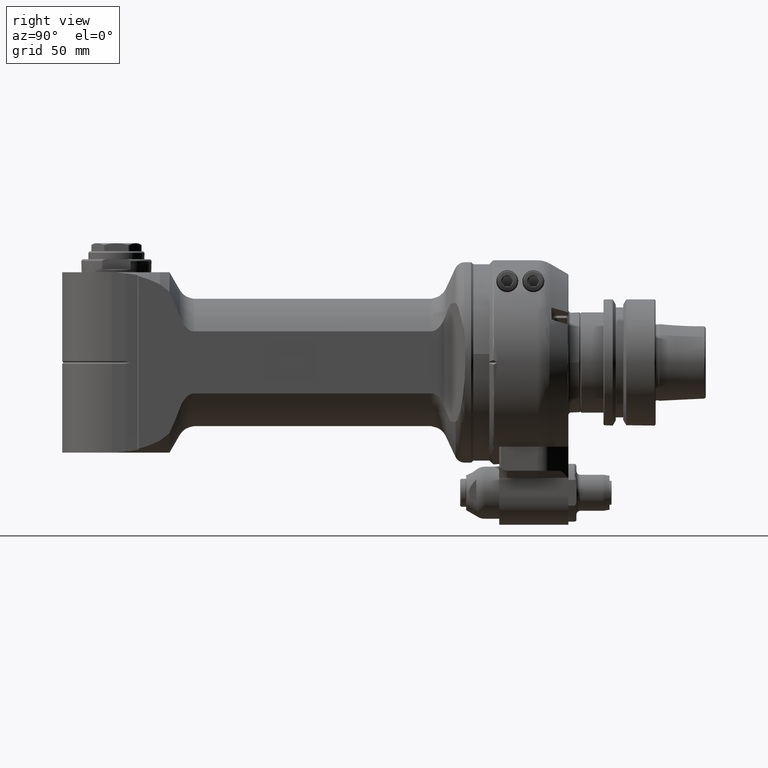
[diagram: clean part render]
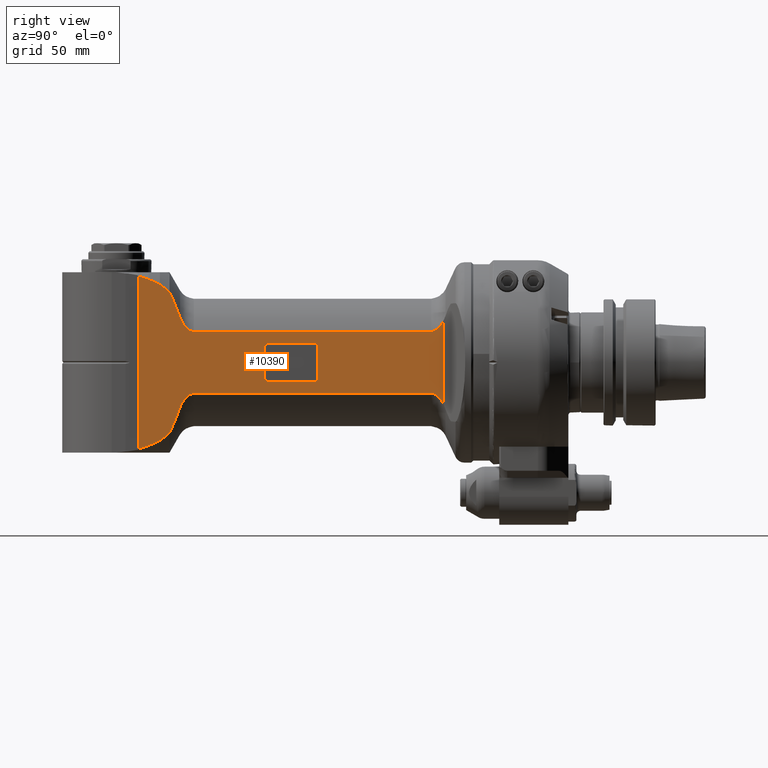
[diagram: same view with one face highlighted and labeled with its STEP entity id]
A machine part, right view. The second image highlights one B-rep face of the part: STEP entity #10390.
In plain terms, the highlighted planar face has unit normal (-1, -0, 0).
Its self-contained STEP definition (entity closure, byte-faithful):
#100=(
BOUNDED_CURVE()
B_SPLINE_CURVE(2,(#20375,#20376,#20377),.UNSPECIFIED.,.F.,.F.)
B_SPLINE_CURVE_WITH_KNOTS((3,3),(2.03905497828461,3.44407312542204),
 .UNSPECIFIED.)
CURVE()
GEOMETRIC_REPRESENTATION_ITEM()
RATIONAL_B_SPLINE_CURVE((1.39135917011265,1.50428489523826,1.58701905543919))
REPRESENTATION_ITEM('')
);
#101=(
BOUNDED_CURVE()
B_SPLINE_CURVE(2,(#20379,#20380,#20381),.UNSPECIFIED.,.F.,.F.)
B_SPLINE_CURVE_WITH_KNOTS((3,3),(0.672694750629335,1.01635820032656),
 .UNSPECIFIED.)
CURVE()
GEOMETRIC_REPRESENTATION_ITEM()
RATIONAL_B_SPLINE_CURVE((1.09614308002075,1.11935469989397,1.14119005597969))
REPRESENTATION_ITEM('')
);
#102=(
BOUNDED_CURVE()
B_SPLINE_CURVE(2,(#20383,#20384,#20385),.UNSPECIFIED.,.F.,.F.)
B_SPLINE_CURVE_WITH_KNOTS((3,3),(0.271465993873518,0.534546793771528),
 .UNSPECIFIED.)
CURVE()
GEOMETRIC_REPRESENTATION_ITEM()
RATIONAL_B_SPLINE_CURVE((1.02892391246967,1.04269703277794,1.05600085717814))
REPRESENTATION_ITEM('')
);
#103=(
BOUNDED_CURVE()
B_SPLINE_CURVE(2,(#20387,#20388,#20389),.UNSPECIFIED.,.F.,.F.)
B_SPLINE_CURVE_WITH_KNOTS((3,3),(0.055537346833267,0.267471575188214),
 .UNSPECIFIED.)
CURVE()
GEOMETRIC_REPRESENTATION_ITEM()
RATIONAL_B_SPLINE_CURVE((1.00475750015511,1.01380938808157,1.02266603537252))
REPRESENTATION_ITEM('')
);
#104=(
BOUNDED_CURVE()
B_SPLINE_CURVE(2,(#20393,#20394,#20395),.UNSPECIFIED.,.F.,.F.)
B_SPLINE_CURVE_WITH_KNOTS((3,3),(19.4953049597711,19.7072392303483),
 .UNSPECIFIED.)
CURVE()
GEOMETRIC_REPRESENTATION_ITEM()
RATIONAL_B_SPLINE_CURVE((1.02266613989085,1.01380949169473,1.00475760284315))
REPRESENTATION_ITEM('')
);
#105=(
BOUNDED_CURVE()
B_SPLINE_CURVE(2,(#20397,#20398,#20399),.UNSPECIFIED.,.F.,.F.)
B_SPLINE_CURVE_WITH_KNOTS((3,3),(15.4491780936748,15.7122429200567),
 .UNSPECIFIED.)
CURVE()
GEOMETRIC_REPRESENTATION_ITEM()
RATIONAL_B_SPLINE_CURVE((1.0559652874169,1.04266191113553,1.02888925475358))
REPRESENTATION_ITEM('')
);
#106=(
BOUNDED_CURVE()
B_SPLINE_CURVE(2,(#20401,#20402,#20403),.UNSPECIFIED.,.F.,.F.)
B_SPLINE_CURVE_WITH_KNOTS((3,3),(11.9199200040541,12.263555348694),
 .UNSPECIFIED.)
CURVE()
GEOMETRIC_REPRESENTATION_ITEM()
RATIONAL_B_SPLINE_CURVE((1.14112647971063,1.11929234008351,1.09608201334124))
REPRESENTATION_ITEM('')
);
#107=(
BOUNDED_CURVE()
B_SPLINE_CURVE(2,(#20405,#20406,#20407),.UNSPECIFIED.,.F.,.F.)
B_SPLINE_CURVE_WITH_KNOTS((3,3),(11.1423435471514,12.5471695145456),
 .UNSPECIFIED.)
CURVE()
GEOMETRIC_REPRESENTATION_ITEM()
RATIONAL_B_SPLINE_CURVE((1.58681804929736,1.50409436790844,1.39118294555019))
REPRESENTATION_ITEM('')
);
#255=B_SPLINE_CURVE_WITH_KNOTS('',3,(#20345,#20346,#20347,#20348,#20349,
#20350,#20351,#20352,#20353,#20354,#20355,#20356),.UNSPECIFIED.,.F.,.F.,
(4,2,2,2,2,4),(-2.93597407218818,-2.82337724519284,-2.69378102431655,-2.51186335157645,
-2.32994567883634,-2.12339512890314),.UNSPECIFIED.);
#256=B_SPLINE_CURVE_WITH_KNOTS('',3,(#20360,#20361,#20362,#20363,#20364,
#20365,#20366,#20367,#20368,#20369,#20370,#20371,#20372,#20373),
 .UNSPECIFIED.,.F.,.F.,(4,2,2,2,2,2,4),(-3.92307824233944,-3.77852981809237,
-3.54200246554002,-3.36008479279991,-3.17816712005981,-3.04857089918351,
-2.93597407218818),.UNSPECIFIED.);
#257=B_SPLINE_CURVE_WITH_KNOTS('',3,(#20409,#20410,#20411,#20412,#20413,
#20414,#20415,#20416,#20417,#20418,#20419,#20420,#20421,#20422),
 .UNSPECIFIED.,.F.,.F.,(4,2,2,2,2,2,4),(-2.93597407218818,-2.82337724519285,
-2.69378102431655,-2.51186335157645,-2.32994567883634,-2.09341832628399,
-1.94886990203693),.UNSPECIFIED.);
#258=B_SPLINE_CURVE_WITH_KNOTS('',3,(#20425,#20426,#20427,#20428,#20429,
#20430,#20431,#20432,#20433,#20434,#20435,#20436),.UNSPECIFIED.,.F.,.F.,
(4,2,2,2,2,4),(-3.74855301568806,-3.54200246554002,-3.36008479279991,-3.17816712005981,
-3.04857089918352,-2.93597407218818),.UNSPECIFIED.);
#898=LINE('',#20320,#1541);
#904=LINE('',#20343,#1547);
#905=LINE('',#20358,#1548);
#906=LINE('',#20391,#1549);
#907=LINE('',#20424,#1550);
#908=LINE('',#20438,#1551);
#909=LINE('',#20442,#1552);
#910=LINE('',#20446,#1553);
#1541=VECTOR('',#14250,15.5);
#1547=VECTOR('',#14272,41.77019528795);
#1548=VECTOR('',#14273,118.3910979735);
#1549=VECTOR('',#14274,10.);
#1550=VECTOR('',#14275,118.3910979735);
#1551=VECTOR('',#14276,22.5);
#1552=VECTOR('',#14279,15.5);
#1553=VECTOR('',#14282,22.5);
#1925=FACE_BOUND('',#3299,.T.);
#2151=PLANE('',#11555);
#2637=FACE_OUTER_BOUND('',#3298,.T.);
#3298=EDGE_LOOP('',(#9029,#9030,#9031,#9032,#9033,#9034,#9035,#9036,#9037,
#9038,#9039,#9040,#9041,#9042,#9043,#9044));
#3299=EDGE_LOOP('',(#9045,#9046,#9047,#9048,#9049,#9050,#9051,#9052));
#3997=CIRCLE('',#11554,2.);
#3998=CIRCLE('',#11556,2.);
#3999=CIRCLE('',#11557,2.);
#4000=CIRCLE('',#11558,2.);
#4925=VERTEX_POINT('',#20317);
#4926=VERTEX_POINT('',#20319);
#4933=VERTEX_POINT('',#20337);
#4934=VERTEX_POINT('',#20341);
#4935=VERTEX_POINT('',#20342);
#4936=VERTEX_POINT('',#20344);
#4937=VERTEX_POINT('',#20357);
#4938=VERTEX_POINT('',#20359);
#4939=VERTEX_POINT('',#20374);
#4940=VERTEX_POINT('',#20378);
#4941=VERTEX_POINT('',#20382);
#4942=VERTEX_POINT('',#20386);
#4943=VERTEX_POINT('',#20390);
#4944=VERTEX_POINT('',#20392);
#4945=VERTEX_POINT('',#20396);
#4946=VERTEX_POINT('',#20400);
#4947=VERTEX_POINT('',#20404);
#4948=VERTEX_POINT('',#20408);
#4949=VERTEX_POINT('',#20423);
#4950=VERTEX_POINT('',#20437);
#4951=VERTEX_POINT('',#20439);
#4952=VERTEX_POINT('',#20441);
#4953=VERTEX_POINT('',#20443);
#4954=VERTEX_POINT('',#20445);
#6339=EDGE_CURVE('',#4926,#4925,#898,.T.);
#6349=EDGE_CURVE('',#4925,#4933,#3997,.T.);
#6350=EDGE_CURVE('',#4934,#4935,#904,.T.);
#6351=EDGE_CURVE('',#4936,#4934,#255,.T.);
#6352=EDGE_CURVE('',#4937,#4936,#905,.T.);
#6353=EDGE_CURVE('',#4938,#4937,#256,.T.);
#6354=EDGE_CURVE('',#4939,#4938,#100,.T.);
#6355=EDGE_CURVE('',#4940,#4939,#101,.T.);
#6356=EDGE_CURVE('',#4941,#4940,#102,.T.);
#6357=EDGE_CURVE('',#4942,#4941,#103,.T.);
#6358=EDGE_CURVE('',#4943,#4942,#906,.T.);
#6359=EDGE_CURVE('',#4944,#4943,#104,.T.);
#6360=EDGE_CURVE('',#4945,#4944,#105,.T.);
#6361=EDGE_CURVE('',#4946,#4945,#106,.T.);
#6362=EDGE_CURVE('',#4947,#4946,#107,.T.);
#6363=EDGE_CURVE('',#4948,#4947,#257,.T.);
#6364=EDGE_CURVE('',#4949,#4948,#907,.T.);
#6365=EDGE_CURVE('',#4935,#4949,#258,.T.);
#6366=EDGE_CURVE('',#4933,#4950,#908,.T.);
#6367=EDGE_CURVE('',#4950,#4951,#3998,.T.);
#6368=EDGE_CURVE('',#4951,#4952,#909,.T.);
#6369=EDGE_CURVE('',#4952,#4953,#3999,.T.);
#6370=EDGE_CURVE('',#4953,#4954,#910,.T.);
#6371=EDGE_CURVE('',#4954,#4926,#4000,.T.);
#9029=ORIENTED_EDGE('',*,*,#6350,.F.);
#9030=ORIENTED_EDGE('',*,*,#6351,.F.);
#9031=ORIENTED_EDGE('',*,*,#6352,.F.);
#9032=ORIENTED_EDGE('',*,*,#6353,.F.);
#9033=ORIENTED_EDGE('',*,*,#6354,.F.);
#9034=ORIENTED_EDGE('',*,*,#6355,.F.);
#9035=ORIENTED_EDGE('',*,*,#6356,.F.);
#9036=ORIENTED_EDGE('',*,*,#6357,.F.);
#9037=ORIENTED_EDGE('',*,*,#6358,.F.);
#9038=ORIENTED_EDGE('',*,*,#6359,.F.);
#9039=ORIENTED_EDGE('',*,*,#6360,.F.);
#9040=ORIENTED_EDGE('',*,*,#6361,.F.);
#9041=ORIENTED_EDGE('',*,*,#6362,.F.);
#9042=ORIENTED_EDGE('',*,*,#6363,.F.);
#9043=ORIENTED_EDGE('',*,*,#6364,.F.);
#9044=ORIENTED_EDGE('',*,*,#6365,.F.);
#9045=ORIENTED_EDGE('',*,*,#6339,.T.);
#9046=ORIENTED_EDGE('',*,*,#6349,.T.);
#9047=ORIENTED_EDGE('',*,*,#6366,.T.);
#9048=ORIENTED_EDGE('',*,*,#6367,.T.);
#9049=ORIENTED_EDGE('',*,*,#6368,.T.);
#9050=ORIENTED_EDGE('',*,*,#6369,.T.);
#9051=ORIENTED_EDGE('',*,*,#6370,.T.);
#9052=ORIENTED_EDGE('',*,*,#6371,.T.);
#10390=ADVANCED_FACE('',(#2637,#1925),#2151,.F.);
#11554=AXIS2_PLACEMENT_3D('',#20339,#14268,#14269);
#11555=AXIS2_PLACEMENT_3D('',#20340,#14270,#14271);
#11556=AXIS2_PLACEMENT_3D('',#20440,#14277,#14278);
#11557=AXIS2_PLACEMENT_3D('',#20444,#14280,#14281);
#11558=AXIS2_PLACEMENT_3D('',#20447,#14283,#14284);
#14250=DIRECTION('',(0.,1.,0.));
#14268=DIRECTION('center_axis',(0.,0.,-1.));
#14269=DIRECTION('ref_axis',(-1.,0.,0.));
#14270=DIRECTION('center_axis',(0.,0.,-1.));
#14271=DIRECTION('ref_axis',(-1.,0.,0.));
#14272=DIRECTION('',(-2.605461445507E-11,1.,6.049025988375E-13));
#14273=DIRECTION('',(-1.,0.,0.));
#14274=DIRECTION('',(0.,-1.,0.));
#14275=DIRECTION('',(1.,0.,0.));
#14276=DIRECTION('',(1.,0.,0.));
#14277=DIRECTION('center_axis',(0.,0.,-1.));
#14278=DIRECTION('ref_axis',(0.,1.,0.));
#14279=DIRECTION('',(0.,-1.,0.));
#14280=DIRECTION('center_axis',(0.,0.,-1.));
#14281=DIRECTION('ref_axis',(1.,0.,0.));
#14282=DIRECTION('',(-1.,0.,0.));
#14283=DIRECTION('center_axis',(0.,0.,-1.));
#14284=DIRECTION('ref_axis',(4.973799150321E-14,-1.,0.));
#20317=CARTESIAN_POINT('',(89.5,7.75,28.));
#20319=CARTESIAN_POINT('',(89.5,-7.75,28.));
#20320=CARTESIAN_POINT('',(89.5,-7.75,28.));
#20337=CARTESIAN_POINT('',(91.5,9.75,28.));
#20339=CARTESIAN_POINT('Origin',(91.5,7.75,28.));
#20340=CARTESIAN_POINT('Origin',(65.03992163408,-45.,28.));
#20341=CARTESIAN_POINT('',(26.80083020114,-20.88509764293,27.99999999999));
#20342=CARTESIAN_POINT('',(26.80083020005,20.88509764501,28.00000000002));
#20343=CARTESIAN_POINT('',(26.80083020114,-20.88509764293,27.99999999999));
#20344=CARTESIAN_POINT('',(32.99009987301,-15.49193338483,28.));
#20345=CARTESIAN_POINT('Ctrl Pts',(32.99009987301,-15.4919333848297,28.));
#20346=CARTESIAN_POINT('Ctrl Pts',(32.6147771163589,-15.4919333848297,28.));
#20347=CARTESIAN_POINT('Ctrl Pts',(32.1698889724911,-15.5620993782773,28.));
#20348=CARTESIAN_POINT('Ctrl Pts',(31.3977248933945,-15.7977099228234,28.));
#20349=CARTESIAN_POINT('Ctrl Pts',(30.9310586317008,-16.0234209939818,28.));
#20350=CARTESIAN_POINT('Ctrl Pts',(30.053798895377,-16.5789816504194,28.));
#20351=CARTESIAN_POINT('Ctrl Pts',(29.550628761613,-17.0081024201193,28.));
#20352=CARTESIAN_POINT('Ctrl Pts',(28.6408811523053,-17.9652022129463,28.));
#20353=CARTESIAN_POINT('Ctrl Pts',(28.233192022949,-18.4921239661789,28.));
#20354=CARTESIAN_POINT('Ctrl Pts',(27.5057921800016,-19.5634036380883,28.));
#20355=CARTESIAN_POINT('Ctrl Pts',(27.1316615896585,-20.2094567222488,28.));
#20356=CARTESIAN_POINT('Ctrl Pts',(26.8008302011102,-20.8850976429154,28.));
#20357=CARTESIAN_POINT('',(151.3811978465,-15.49193338483,28.));
#20358=CARTESIAN_POINT('',(151.3811978465,-15.49193338483,28.));
#20359=CARTESIAN_POINT('',(158.3094010768,-22.62741699797,28.));
#20360=CARTESIAN_POINT('Ctrl Pts',(158.309401076779,-22.6274169979778,28.));
#20361=CARTESIAN_POINT('Ctrl Pts',(158.135199044939,-22.1473726465425,28.));
#20362=CARTESIAN_POINT('Ctrl Pts',(157.934574124956,-21.6588360308148,28.));
#20363=CARTESIAN_POINT('Ctrl Pts',(157.347305959135,-20.3989143849032,28.));
#20364=CARTESIAN_POINT('Ctrl Pts',(156.921636569653,-19.6460707325903,28.));
#20365=CARTESIAN_POINT('Ctrl Pts',(156.138105696561,-18.4921239661789,28.));
#20366=CARTESIAN_POINT('Ctrl Pts',(155.730416567205,-17.9652022129463,28.));
#20367=CARTESIAN_POINT('Ctrl Pts',(154.820668957897,-17.0081024201193,28.));
#20368=CARTESIAN_POINT('Ctrl Pts',(154.317498824133,-16.5789816504194,28.));
#20369=CARTESIAN_POINT('Ctrl Pts',(153.440239087809,-16.0234209939818,28.));
#20370=CARTESIAN_POINT('Ctrl Pts',(152.973572826115,-15.7977099228234,28.));
#20371=CARTESIAN_POINT('Ctrl Pts',(152.201408747019,-15.5620993782773,28.));
#20372=CARTESIAN_POINT('Ctrl Pts',(151.756520603151,-15.4919333848297,28.));
#20373=CARTESIAN_POINT('Ctrl Pts',(151.3811978465,-15.4919333848297,28.));
#20374=CARTESIAN_POINT('',(163.505553565893,-35.2278300211891,27.9999999663342));
#20375=CARTESIAN_POINT('Ctrl Pts',(163.505553553357,-35.2278300268799,28.));
#20376=CARTESIAN_POINT('Ctrl Pts',(160.341636957151,-28.2276005599298,28.));
#20377=CARTESIAN_POINT('Ctrl Pts',(158.309401076753,-22.627416997987,28.));
#20378=CARTESIAN_POINT('',(168.306557192998,-38.9871774622783,27.9999999732539));
#20379=CARTESIAN_POINT('Ctrl Pts',(168.306557193698,-38.9871774616585,28.));
#20380=CARTESIAN_POINT('Ctrl Pts',(165.784458419852,-37.0468690861524,28.));
#20381=CARTESIAN_POINT('Ctrl Pts',(163.505553595417,-35.2278299842281,28.));
#20382=CARTESIAN_POINT('',(173.801511974997,-41.4246303787763,27.9999999918315));
#20383=CARTESIAN_POINT('Ctrl Pts',(173.801511976008,-41.4246303766251,28.));
#20384=CARTESIAN_POINT('Ctrl Pts',(170.970752707287,-40.1810319362775,28.));
#20385=CARTESIAN_POINT('Ctrl Pts',(168.3065572063,-38.987177432899,28.));
#20386=CARTESIAN_POINT('',(178.99000135961,-43.0924361004242,27.9999994453962));
#20387=CARTESIAN_POINT('Ctrl Pts',(178.990001676871,-43.0924351075719,28.));
#20388=CARTESIAN_POINT('Ctrl Pts',(176.344563688575,-42.2470983647563,28.));
#20389=CARTESIAN_POINT('Ctrl Pts',(173.80151197749,-41.4246303712228,28.));
#20390=CARTESIAN_POINT('',(178.99000135961,43.0924361004242,27.9999994453962));
#20391=CARTESIAN_POINT('',(178.99,-22.5,28.));
#20392=CARTESIAN_POINT('',(173.801511974996,41.424630378776,27.9999999918316));
#20393=CARTESIAN_POINT('Ctrl Pts',(173.801511977489,41.4246303712225,28.));
#20394=CARTESIAN_POINT('Ctrl Pts',(176.344563688575,42.2470983647561,28.));
#20395=CARTESIAN_POINT('Ctrl Pts',(178.990001676871,43.0924351075719,28.));
#20396=CARTESIAN_POINT('',(168.306557192998,38.9871774622785,27.9999999732538));
#20397=CARTESIAN_POINT('Ctrl Pts',(168.3065572063,38.9871774328991,28.));
#20398=CARTESIAN_POINT('Ctrl Pts',(170.970752707287,40.1810319362774,28.));
#20399=CARTESIAN_POINT('Ctrl Pts',(173.801511976008,41.4246303766249,28.));
#20400=CARTESIAN_POINT('',(163.505553565892,35.2278300211879,27.9999999663346));
#20401=CARTESIAN_POINT('Ctrl Pts',(163.505553595416,35.2278299842274,28.));
#20402=CARTESIAN_POINT('Ctrl Pts',(165.784458419852,37.0468690861521,28.));
#20403=CARTESIAN_POINT('Ctrl Pts',(168.306557193698,38.9871774616587,28.));
#20404=CARTESIAN_POINT('',(158.3094010768,22.62741699797,28.));
#20405=CARTESIAN_POINT('Ctrl Pts',(158.309401076753,22.6274169979872,28.));
#20406=CARTESIAN_POINT('Ctrl Pts',(160.341636957151,28.2276005599294,28.));
#20407=CARTESIAN_POINT('Ctrl Pts',(163.505553553356,35.2278300268786,28.));
#20408=CARTESIAN_POINT('',(151.3811978465,15.49193338483,28.));
#20409=CARTESIAN_POINT('Ctrl Pts',(151.3811978465,15.4919333848297,28.));
#20410=CARTESIAN_POINT('Ctrl Pts',(151.756520603151,15.4919333848297,28.));
#20411=CARTESIAN_POINT('Ctrl Pts',(152.201408747019,15.5620993782773,28.));
#20412=CARTESIAN_POINT('Ctrl Pts',(152.973572826115,15.7977099228234,28.));
#20413=CARTESIAN_POINT('Ctrl Pts',(153.440239087809,16.0234209939818,28.));
#20414=CARTESIAN_POINT('Ctrl Pts',(154.317498824133,16.5789816504194,28.));
#20415=CARTESIAN_POINT('Ctrl Pts',(154.820668957897,17.0081024201193,28.));
#20416=CARTESIAN_POINT('Ctrl Pts',(155.730416567205,17.9652022129463,28.));
#20417=CARTESIAN_POINT('Ctrl Pts',(156.138105696561,18.4921239661789,28.));
#20418=CARTESIAN_POINT('Ctrl Pts',(156.921636569653,19.6460707325903,28.));
#20419=CARTESIAN_POINT('Ctrl Pts',(157.347305959135,20.3989143849032,28.));
#20420=CARTESIAN_POINT('Ctrl Pts',(157.934574124956,21.6588360308148,28.));
#20421=CARTESIAN_POINT('Ctrl Pts',(158.135199044939,22.1473726465425,28.));
#20422=CARTESIAN_POINT('Ctrl Pts',(158.309401076778,22.6274169979778,28.));
#20423=CARTESIAN_POINT('',(32.99009987301,15.49193338483,28.));
#20424=CARTESIAN_POINT('',(32.99009987301,15.49193338483,28.));
#20425=CARTESIAN_POINT('Ctrl Pts',(26.8008302000779,20.8850976450237,28.));
#20426=CARTESIAN_POINT('Ctrl Pts',(27.1316615888836,20.2094567235945,28.));
#20427=CARTESIAN_POINT('Ctrl Pts',(27.5057921795993,19.5634036386808,28.));
#20428=CARTESIAN_POINT('Ctrl Pts',(28.233192022949,18.4921239661789,28.));
#20429=CARTESIAN_POINT('Ctrl Pts',(28.6408811523053,17.9652022129463,28.));
#20430=CARTESIAN_POINT('Ctrl Pts',(29.550628761613,17.0081024201193,28.));
#20431=CARTESIAN_POINT('Ctrl Pts',(30.053798895377,16.5789816504194,28.));
#20432=CARTESIAN_POINT('Ctrl Pts',(30.9310586317008,16.0234209939818,28.));
#20433=CARTESIAN_POINT('Ctrl Pts',(31.3977248933945,15.7977099228234,28.));
#20434=CARTESIAN_POINT('Ctrl Pts',(32.1698889724911,15.5620993782773,28.));
#20435=CARTESIAN_POINT('Ctrl Pts',(32.6147771163589,15.4919333848297,28.));
#20436=CARTESIAN_POINT('Ctrl Pts',(32.99009987301,15.4919333848297,28.));
#20437=CARTESIAN_POINT('',(114.,9.75,28.));
#20438=CARTESIAN_POINT('',(91.5,9.75,28.));
#20439=CARTESIAN_POINT('',(116.,7.75,28.));
#20440=CARTESIAN_POINT('Origin',(114.,7.75,28.));
#20441=CARTESIAN_POINT('',(116.,-7.75,28.));
#20442=CARTESIAN_POINT('',(116.,7.75,28.));
#20443=CARTESIAN_POINT('',(114.,-9.75,28.));
#20444=CARTESIAN_POINT('Origin',(114.,-7.75,28.));
#20445=CARTESIAN_POINT('',(91.5,-9.75,28.));
#20446=CARTESIAN_POINT('',(114.,-9.75,28.));
#20447=CARTESIAN_POINT('Origin',(91.5,-7.75,28.));